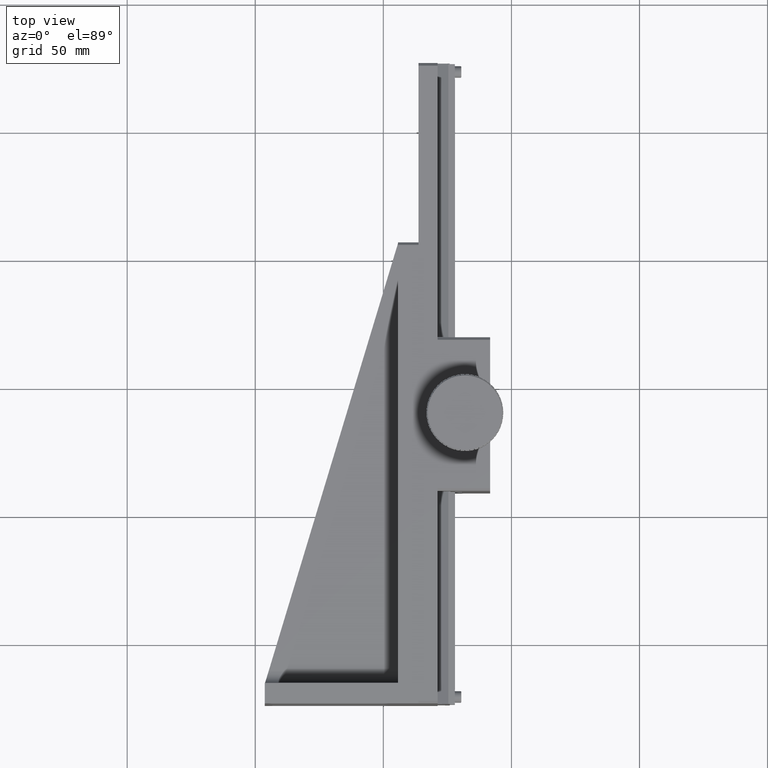
[diagram: clean part render]
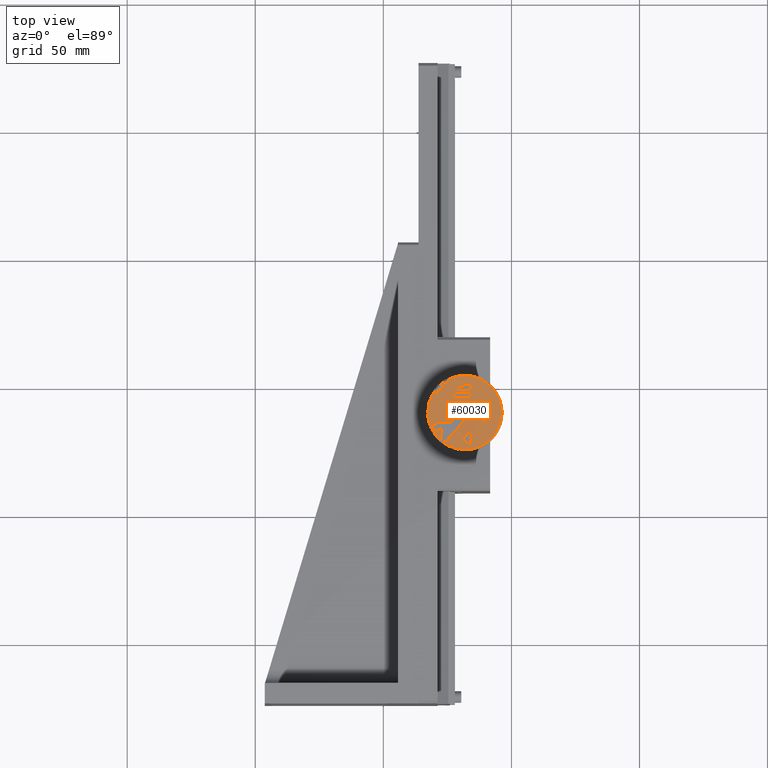
[diagram: same view with one face highlighted and labeled with its STEP entity id]
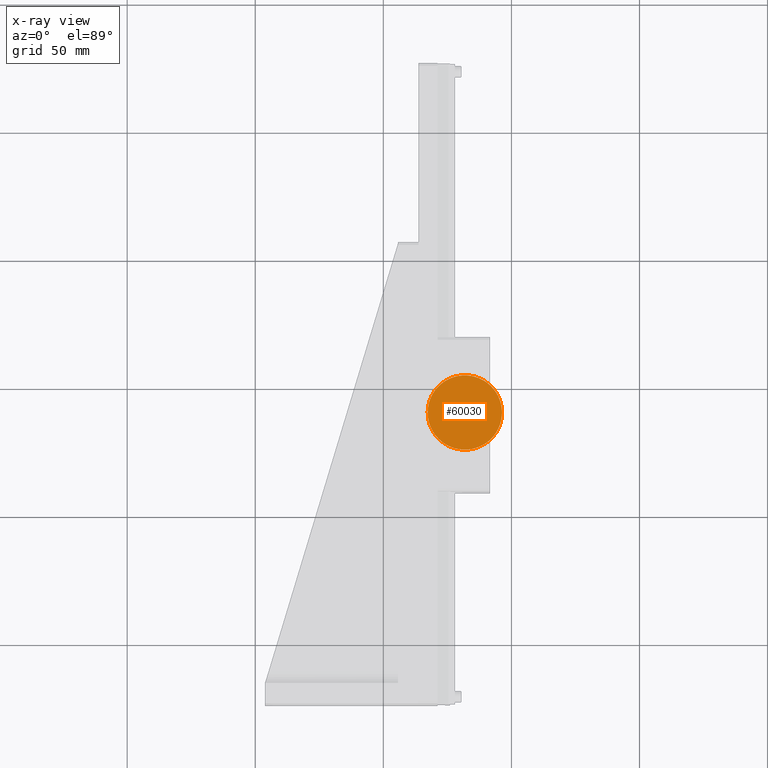
[diagram: x-ray of the same camera — body ghosted, the highlighted face saturated]
A machine part, top view. The second image highlights one B-rep face of the part: STEP entity #60030.
The next image is the same camera in x-ray: the body ghosted, the highlighted face saturated — about 0% of this face is hidden behind the body in this view.
In plain terms, the highlighted planar face has unit normal (0, 0, -1).
Its self-contained STEP definition (entity closure, byte-faithful):
#118 = AXIS2_PLACEMENT_3D ( 'NONE', #47805, #21446, #3504 ) ;
#191 = CARTESIAN_POINT ( 'NONE',  ( 90.33241959013697908, 250.8428864988914029, 183.1408711668379965 ) ) ;
#643 = CARTESIAN_POINT ( 'NONE',  ( 81.80953343189470672, 239.1121400804544805, 183.1408711668445903 ) ) ;
#1228 = CARTESIAN_POINT ( 'NONE',  ( 73.28664727365543285, 250.8428864988915166, 183.1408711668370017 ) ) ;
#1408 = CARTESIAN_POINT ( 'NONE',  ( 81.80953343189470672, 239.1121400804544805, 183.1408711668445903 ) ) ;
#1700 = VERTEX_POINT ( 'NONE', #37595 ) ;
#1824 = ORIENTED_EDGE ( 'NONE', *, *, #68487, .F. ) ;
#1853 = CIRCLE ( 'NONE', #50280, 14.49999999999999822 ) ;
#1936 = AXIS2_PLACEMENT_3D ( 'NONE', #3695, #90629, #22726 ) ;
#2035 = DIRECTION ( 'NONE',  ( 6.027908300939417609E-14, 2.620635585224594939E-15, -1.000000000000000000 ) ) ;
#2379 = DIRECTION ( 'NONE',  ( 6.027908300939417609E-14, 2.620635585224594939E-15, -1.000000000000000000 ) ) ;
#2598 = EDGE_CURVE ( 'NONE', #70882, #48266, #69944, .T. ) ;
#2668 = CARTESIAN_POINT ( 'NONE',  ( 81.80953343189470672, 239.1121400804544805, 183.1408711668445903 ) ) ;
#2868 = VERTEX_POINT ( 'NONE', #63141 ) ;
#3011 = AXIS2_PLACEMENT_3D ( 'NONE', #110458, #50499, #66810 ) ;
#3241 = VERTEX_POINT ( 'NONE', #90593 ) ;
#3242 = EDGE_CURVE ( 'NONE', #12390, #65627, #50249, .T. ) ;
#3339 = CIRCLE ( 'NONE', #66076, 14.49999999999999822 ) ;
#3504 = DIRECTION ( 'NONE',  ( -1.000000000000000000, 0.000000000000000000, -5.933950648858596521E-14 ) ) ;
#3694 = CIRCLE ( 'NONE', #91482, 14.49999999999999822 ) ;
#3695 = CARTESIAN_POINT ( 'NONE',  ( 81.80953343189470672, 239.1121400804544805, 183.1408711668445903 ) ) ;
#4094 = CIRCLE ( 'NONE', #61436, 14.49999999999999822 ) ;
#4166 = CIRCLE ( 'NONE', #75874, 14.49999999999999822 ) ;
#4594 = EDGE_CURVE ( 'NONE', #72552, #90925, #3694, .T. ) ;
#4930 = CIRCLE ( 'NONE', #81992, 14.49999999999999822 ) ;
#4963 = DIRECTION ( 'NONE',  ( -1.000000000000000000, 0.000000000000000000, -5.933950648858596521E-14 ) ) ;
#5435 = VERTEX_POINT ( 'NONE', #14615 ) ;
#5567 = DIRECTION ( 'NONE',  ( -1.000000000000000000, 0.000000000000000000, -5.933950648858596521E-14 ) ) ;
#5589 = DIRECTION ( 'NONE',  ( -1.000000000000000000, 0.000000000000000000, -5.933950648858596521E-14 ) ) ;
#6129 = DIRECTION ( 'NONE',  ( -1.000000000000000000, 0.000000000000000000, -5.933950648858596521E-14 ) ) ;
#6131 = EDGE_CURVE ( 'NONE', #72681, #43402, #86109, .T. ) ;
#6378 = CARTESIAN_POINT ( 'NONE',  ( 81.80953343189470672, 239.1121400804544805, 183.1408711668445903 ) ) ;
#6958 = CIRCLE ( 'NONE', #55325, 14.49999999999999822 ) ;
#7122 = EDGE_CURVE ( 'NONE', #96632, #58029, #93403, .T. ) ;
#7265 = CIRCLE ( 'NONE', #118, 14.49999999999999822 ) ;
#7390 = AXIS2_PLACEMENT_3D ( 'NONE', #107556, #25085, #43035 ) ;
#7595 = CARTESIAN_POINT ( 'NONE',  ( 81.80953343189470672, 239.1121400804544805, 183.1408711668445903 ) ) ;
#7844 = AXIS2_PLACEMENT_3D ( 'NONE', #30002, #98434, #21596 ) ;
#8001 = CARTESIAN_POINT ( 'NONE',  ( 67.56636829633016816, 241.8291691419478298, 183.1408711668366038 ) ) ;
#8318 = AXIS2_PLACEMENT_3D ( 'NONE', #59483, #74135, #48862 ) ;
#8345 = ORIENTED_EDGE ( 'NONE', *, *, #88787, .F. ) ;
#8413 = CARTESIAN_POINT ( 'NONE',  ( 81.80953343189470672, 239.1121400804544805, 183.1408711668445903 ) ) ;
#8487 = EDGE_CURVE ( 'NONE', #54500, #5435, #100577, .T. ) ;
#9237 = DIRECTION ( 'NONE',  ( -1.000000000000000000, 0.000000000000000000, -5.933950648858596521E-14 ) ) ;
#9461 = DIRECTION ( 'NONE',  ( 6.027908300939417609E-14, 2.620635585224594939E-15, -1.000000000000000000 ) ) ;
#9803 = DIRECTION ( 'NONE',  ( 6.027908300939417609E-14, 2.620635585224594939E-15, -1.000000000000000000 ) ) ;
#9913 = DIRECTION ( 'NONE',  ( -1.000000000000000000, 0.000000000000000000, -5.933950648858596521E-14 ) ) ;
#10169 = EDGE_CURVE ( 'NONE', #5435, #10825, #57678, .T. ) ;
#10622 = AXIS2_PLACEMENT_3D ( 'NONE', #93899, #25987, #68675 ) ;
#10825 = VERTEX_POINT ( 'NONE', #1228 ) ;
#11370 = DIRECTION ( 'NONE',  ( -1.000000000000000000, 0.000000000000000000, -5.933950648858596521E-14 ) ) ;
#12390 = VERTEX_POINT ( 'NONE', #98100 ) ;
#12608 = AXIS2_PLACEMENT_3D ( 'NONE', #68269, #53045, #35091 ) ;
#12634 = CARTESIAN_POINT ( 'NONE',  ( 91.73546646786209635, 249.6821851780650832, 183.1408711668381102 ) ) ;
#13113 = CARTESIAN_POINT ( 'NONE',  ( 79.99220154521357529, 224.7264769113947978, 183.1408711668372291 ) ) ;
#13736 = CARTESIAN_POINT ( 'NONE',  ( 81.80953343189470672, 239.1121400804544805, 183.1408711668445903 ) ) ;
#13883 = CARTESIAN_POINT ( 'NONE',  ( 85.41553679578652236, 253.1565959168197821, 183.1408711668377407 ) ) ;
#13892 = ORIENTED_EDGE ( 'NONE', *, *, #3242, .F. ) ;
#14515 = CARTESIAN_POINT ( 'NONE',  ( 73.28664727365516285, 227.3813936620180698, 183.1408711668368312 ) ) ;
#14615 = CARTESIAN_POINT ( 'NONE',  ( 71.88360039593025874, 249.6821851780652253, 183.1408711668369165 ) ) ;
#14683 = AXIS2_PLACEMENT_3D ( 'NONE', #33315, #24911, #25996 ) ;
#14799 = EDGE_CURVE ( 'NONE', #60957, #18606, #32515, .T. ) ;
#15278 = DIRECTION ( 'NONE',  ( -1.000000000000000000, 0.000000000000000000, -5.933950648858596521E-14 ) ) ;
#16298 = DIRECTION ( 'NONE',  ( -1.000000000000000000, 0.000000000000000000, -5.933950648858596521E-14 ) ) ;
#16498 = DIRECTION ( 'NONE',  ( -1.000000000000000000, 0.000000000000000000, -5.933950648858596521E-14 ) ) ;
#16609 = AXIS2_PLACEMENT_3D ( 'NONE', #30757, #38644, #4963 ) ;
#16783 = VERTEX_POINT ( 'NONE', #66238 ) ;
#17587 = DIRECTION ( 'NONE',  ( 6.027908300939417609E-14, 2.620635585224594939E-15, -1.000000000000000000 ) ) ;
#17908 = CIRCLE ( 'NONE', #28614, 14.49999999999999822 ) ;
#17980 = CARTESIAN_POINT ( 'NONE',  ( 81.80953343189470672, 239.1121400804544805, 183.1408711668445903 ) ) ;
#18581 = CIRCLE ( 'NONE', #7844, 14.49999999999999822 ) ;
#18606 = VERTEX_POINT ( 'NONE', #13113 ) ;
#19119 = ORIENTED_EDGE ( 'NONE', *, *, #23868, .F. ) ;
#19683 = ORIENTED_EDGE ( 'NONE', *, *, #2598, .F. ) ;
#19753 = CIRCLE ( 'NONE', #44894, 14.49999999999999822 ) ;
#19833 = AXIS2_PLACEMENT_3D ( 'NONE', #79266, #2379, #105015 ) ;
#20361 = CARTESIAN_POINT ( 'NONE',  ( 94.92952569265332841, 232.9383403527610596, 183.1408711668381670 ) ) ;
#20967 = AXIS2_PLACEMENT_3D ( 'NONE', #86104, #93427, #9237 ) ;
#21083 = AXIS2_PLACEMENT_3D ( 'NONE', #107219, #38819, #11370 ) ;
#21446 = DIRECTION ( 'NONE',  ( 6.027908300939417609E-14, 2.620635585224594939E-15, -1.000000000000000000 ) ) ;
#21596 = DIRECTION ( 'NONE',  ( -1.000000000000000000, 0.000000000000000000, -5.933950648858596521E-14 ) ) ;
#21632 = VERTEX_POINT ( 'NONE', #12634 ) ;
#22358 = EDGE_CURVE ( 'NONE', #58029, #63051, #4166, .T. ) ;
#22370 = VERTEX_POINT ( 'NONE', #61327 ) ;
#22412 = EDGE_CURVE ( 'NONE', #58201, #94864, #102631, .T. ) ;
#22726 = DIRECTION ( 'NONE',  ( -1.000000000000000000, 0.000000000000000000, -5.933950648858596521E-14 ) ) ;
#23059 = CARTESIAN_POINT ( 'NONE',  ( 81.80953343189470672, 239.1121400804544805, 183.1408711668445903 ) ) ;
#23546 = DIRECTION ( 'NONE',  ( 6.027908300939417609E-14, 2.620635585224594939E-15, -1.000000000000000000 ) ) ;
#23732 = ORIENTED_EDGE ( 'NONE', *, *, #7122, .F. ) ;
#23829 = VERTEX_POINT ( 'NONE', #105170 ) ;
#23831 = VERTEX_POINT ( 'NONE', #44646 ) ;
#23868 = EDGE_CURVE ( 'NONE', #69784, #40793, #18581, .T. ) ;
#24911 = DIRECTION ( 'NONE',  ( 5.936541774370981581E-14, 2.339045276627645738E-15, -1.000000000000000000 ) ) ;
#25085 = DIRECTION ( 'NONE',  ( 6.027908300939417609E-14, 2.620635585224594939E-15, -1.000000000000000000 ) ) ;
#25307 = DIRECTION ( 'NONE',  ( 6.027908300939417609E-14, 2.620635585224594939E-15, -1.000000000000000000 ) ) ;
#25445 = DIRECTION ( 'NONE',  ( 6.027908300939417609E-14, 2.620635585224594939E-15, -1.000000000000000000 ) ) ;
#25982 = CARTESIAN_POINT ( 'NONE',  ( 81.80953343189470672, 239.1121400804544805, 183.1408711668445903 ) ) ;
#25985 = DIRECTION ( 'NONE',  ( -1.000000000000000000, 0.000000000000000000, -5.933950648858596521E-14 ) ) ;
#25987 = DIRECTION ( 'NONE',  ( 6.027908300939417609E-14, 2.620635585224594939E-15, -1.000000000000000000 ) ) ;
#25996 = DIRECTION ( 'NONE',  ( -1.000000000000000000, 0.000000000000000000, -5.936541774370981581E-14 ) ) ;
#26050 = DIRECTION ( 'NONE',  ( 6.027908300939417609E-14, 2.620635585224594939E-15, -1.000000000000000000 ) ) ;
#26089 = AXIS2_PLACEMENT_3D ( 'NONE', #8413, #58926, #16298 ) ;
#26609 = DIRECTION ( 'NONE',  ( -1.000000000000000000, 0.000000000000000000, -5.933950648858596521E-14 ) ) ;
#27386 = CIRCLE ( 'NONE', #90123, 14.49999999999999822 ) ;
#27489 = VERTEX_POINT ( 'NONE', #47241 ) ;
#27528 = CIRCLE ( 'NONE', #86658, 14.49999999999999822 ) ;
#27707 = DIRECTION ( 'NONE',  ( 6.027908300939417609E-14, 2.620635585224594939E-15, -1.000000000000000000 ) ) ;
#27727 = CARTESIAN_POINT ( 'NONE',  ( 95.59985291817585562, 243.5928864988913745, 183.1408711668382807 ) ) ;
#27951 = AXIS2_PLACEMENT_3D ( 'NONE', #86330, #9461, #53199 ) ;
#28179 = CARTESIAN_POINT ( 'NONE',  ( 74.82410515742115820, 226.4056932198187724, 183.1408711668369165 ) ) ;
#28184 = ORIENTED_EDGE ( 'NONE', *, *, #22412, .F. ) ;
#28602 = CARTESIAN_POINT ( 'NONE',  ( 94.05228835167527279, 231.3426515532591452, 183.1408711668381102 ) ) ;
#28614 = AXIS2_PLACEMENT_3D ( 'NONE', #25982, #17587, #51809 ) ;
#29044 = CARTESIAN_POINT ( 'NONE',  ( 81.80953343189470672, 239.1121400804544805, 183.1408711668445903 ) ) ;
#29297 = CIRCLE ( 'NONE', #92041, 14.49999999999999822 ) ;
#29344 = CARTESIAN_POINT ( 'NONE',  ( 81.80953343189470672, 239.1121400804544805, 183.1408711668445903 ) ) ;
#29906 = ORIENTED_EDGE ( 'NONE', *, *, #30488, .F. ) ;
#29984 = AXIS2_PLACEMENT_3D ( 'NONE', #76403, #65768, #15278 ) ;
#30002 = CARTESIAN_POINT ( 'NONE',  ( 81.80953343189470672, 239.1121400804544805, 183.1408711668445903 ) ) ;
#30045 = DIRECTION ( 'NONE',  ( 6.027908300939417609E-14, 2.620635585224594939E-15, -1.000000000000000000 ) ) ;
#30393 = CARTESIAN_POINT ( 'NONE',  ( 81.80953343189470672, 239.1121400804544805, 183.1408711668445903 ) ) ;
#30488 = EDGE_CURVE ( 'NONE', #57175, #76399, #74620, .T. ) ;
#30545 = ORIENTED_EDGE ( 'NONE', *, *, #47894, .F. ) ;
#30736 = AXIS2_PLACEMENT_3D ( 'NONE', #106882, #30045, #81666 ) ;
#30757 = CARTESIAN_POINT ( 'NONE',  ( 81.80953343189470672, 239.1121400804544805, 183.1408711668445903 ) ) ;
#31090 = DIRECTION ( 'NONE',  ( 6.027908300939417609E-14, 2.620635585224594939E-15, -1.000000000000000000 ) ) ;
#31256 = VERTEX_POINT ( 'NONE', #13883 ) ;
#31336 = ORIENTED_EDGE ( 'NONE', *, *, #52647, .F. ) ;
#31363 = CARTESIAN_POINT ( 'NONE',  ( 81.80953343189470672, 239.1121400804544805, 183.1408711668445903 ) ) ;
#31443 = EDGE_CURVE ( 'NONE', #76399, #22370, #35246, .T. ) ;
#31516 = CARTESIAN_POINT ( 'NONE',  ( 96.05269856746207324, 241.8291691419476308, 183.1408711668383091 ) ) ;
#31651 = AXIS2_PLACEMENT_3D ( 'NONE', #29044, #63295, #97488 ) ;
#31922 = AXIS2_PLACEMENT_3D ( 'NONE', #82455, #23546, #5589 ) ;
#32088 = CARTESIAN_POINT ( 'NONE',  ( 83.62686531857850980, 253.4978032495145328, 183.1408711668375986 ) ) ;
#32515 = CIRCLE ( 'NONE', #64718, 14.49999999999999822 ) ;
#33315 = CARTESIAN_POINT ( 'NONE',  ( 81.80953343189472093, 239.1121400804544521, 183.1408711668445903 ) ) ;
#34119 = AXIS2_PLACEMENT_3D ( 'NONE', #50488, #76304, #85816 ) ;
#34577 = ORIENTED_EDGE ( 'NONE', *, *, #48267, .F. ) ;
#34890 = CIRCLE ( 'NONE', #68969, 14.49999999999999822 ) ;
#34946 = VERTEX_POINT ( 'NONE', #96344 ) ;
#35016 = CARTESIAN_POINT ( 'NONE',  ( 95.59985291817578457, 234.6313936620178424, 183.1408711668382239 ) ) ;
#35091 = DIRECTION ( 'NONE',  ( -1.000000000000000000, 0.000000000000000000, -5.933950648858596521E-14 ) ) ;
#35135 = ORIENTED_EDGE ( 'NONE', *, *, #59448, .F. ) ;
#35246 = CIRCLE ( 'NONE', #31651, 14.49999999999999822 ) ;
#35279 = CARTESIAN_POINT ( 'NONE',  ( 96.28092099410601179, 240.0226026136296582, 183.1408711668383091 ) ) ;
#36279 = CARTESIAN_POINT ( 'NONE',  ( 81.80953343189470672, 239.1121400804544805, 183.1408711668445903 ) ) ;
#36599 = DIRECTION ( 'NONE',  ( 6.027908300939417609E-14, 2.620635585224594939E-15, -1.000000000000000000 ) ) ;
#37595 = CARTESIAN_POINT ( 'NONE',  ( 68.68954117113878510, 232.9383403527612302, 183.1408711668366038 ) ) ;
#37793 = ORIENTED_EDGE ( 'NONE', *, *, #106171, .F. ) ;
#37997 = EDGE_CURVE ( 'NONE', #94920, #1700, #44230, .T. ) ;
#38286 = DIRECTION ( 'NONE',  ( 6.027908300939417609E-14, 2.620635585224594939E-15, -1.000000000000000000 ) ) ;
#38644 = DIRECTION ( 'NONE',  ( 6.027908300939417609E-14, 2.620635585224594939E-15, -1.000000000000000000 ) ) ;
#38819 = DIRECTION ( 'NONE',  ( 6.027908300939417609E-14, 2.620635585224594939E-15, -1.000000000000000000 ) ) ;
#38853 = ORIENTED_EDGE ( 'NONE', *, *, #82146, .F. ) ;
#39254 = ORIENTED_EDGE ( 'NONE', *, *, #68414, .F. ) ;
#39511 = ORIENTED_EDGE ( 'NONE', *, *, #73731, .F. ) ;
#39806 = ORIENTED_EDGE ( 'NONE', *, *, #108098, .F. ) ;
#39807 = DIRECTION ( 'NONE',  ( -1.000000000000000000, 0.000000000000000000, -5.933950648858596521E-14 ) ) ;
#40565 = ORIENTED_EDGE ( 'NONE', *, *, #41075, .F. ) ;
#40793 = VERTEX_POINT ( 'NONE', #98270 ) ;
#41075 = EDGE_CURVE ( 'NONE', #34946, #27489, #90919, .T. ) ;
#41832 = CARTESIAN_POINT ( 'NONE',  ( 92.98197545214503634, 248.3547879318106197, 183.1408711668381386 ) ) ;
#42155 = CARTESIAN_POINT ( 'NONE',  ( 81.80953343189470672, 239.1121400804544805, 183.1408711668445903 ) ) ;
#42840 = CARTESIAN_POINT ( 'NONE',  ( 81.80953343189470672, 239.1121400804544805, 183.1408711668445903 ) ) ;
#42908 = DIRECTION ( 'NONE',  ( -1.000000000000000000, 0.000000000000000000, -5.933950648858596521E-14 ) ) ;
#43035 = DIRECTION ( 'NONE',  ( -1.000000000000000000, 0.000000000000000000, -5.933950648858596521E-14 ) ) ;
#43386 = ORIENTED_EDGE ( 'NONE', *, *, #56097, .F. ) ;
#43402 = VERTEX_POINT ( 'NONE', #84200 ) ;
#43525 = DIRECTION ( 'NONE',  ( 6.027908300939417609E-14, 2.620635585224594939E-15, -1.000000000000000000 ) ) ;
#43810 = CIRCLE ( 'NONE', #58156, 14.49999999999999822 ) ;
#44002 = CARTESIAN_POINT ( 'NONE',  ( 81.80953343189470672, 239.1121400804544805, 183.1408711668445903 ) ) ;
#44230 = CIRCLE ( 'NONE', #63944, 14.49999999999999822 ) ;
#44492 = DIRECTION ( 'NONE',  ( 6.027908300939417609E-14, 2.620635585224594939E-15, -1.000000000000000000 ) ) ;
#44557 = DIRECTION ( 'NONE',  ( 6.027908300939417609E-14, 2.620635585224594939E-15, -1.000000000000000000 ) ) ;
#44646 = CARTESIAN_POINT ( 'NONE',  ( 68.68954117113895563, 245.2859398081483562, 183.1408711668366607 ) ) ;
#44894 = AXIS2_PLACEMENT_3D ( 'NONE', #2668, #90186, #96920 ) ;
#45277 = DIRECTION ( 'NONE',  ( 6.027908300939417609E-14, 2.620635585224594939E-15, -1.000000000000000000 ) ) ;
#45535 = ORIENTED_EDGE ( 'NONE', *, *, #72423, .F. ) ;
#45645 = DIRECTION ( 'NONE',  ( -1.000000000000000000, 0.000000000000000000, -5.933950648858596521E-14 ) ) ;
#45745 = CARTESIAN_POINT ( 'NONE',  ( 91.73546646786199688, 228.5420949828441337, 183.1408711668379397 ) ) ;
#46594 = CIRCLE ( 'NONE', #87831, 14.49999999999999822 ) ;
#46698 = VERTEX_POINT ( 'NONE', #28179 ) ;
#47108 = ORIENTED_EDGE ( 'NONE', *, *, #67190, .F. ) ;
#47135 = EDGE_CURVE ( 'NONE', #10825, #3241, #99971, .T. ) ;
#47241 = CARTESIAN_POINT ( 'NONE',  ( 67.33814586968625804, 240.0226026136298287, 183.1408711668365470 ) ) ;
#47401 = EDGE_CURVE ( 'NONE', #99399, #96650, #6958, .T. ) ;
#47638 = CIRCLE ( 'NONE', #110294, 14.49999999999999822 ) ;
#47805 = CARTESIAN_POINT ( 'NONE',  ( 81.80953343189470672, 239.1121400804544805, 183.1408711668445903 ) ) ;
#47894 = EDGE_CURVE ( 'NONE', #65340, #58201, #80386, .T. ) ;
#48111 = AXIS2_PLACEMENT_3D ( 'NONE', #30393, #38286, #48356 ) ;
#48227 = DIRECTION ( 'NONE',  ( 6.027908300939417609E-14, 2.620635585224594939E-15, -1.000000000000000000 ) ) ;
#48266 = VERTEX_POINT ( 'NONE', #108195 ) ;
#48267 = EDGE_CURVE ( 'NONE', #2868, #70882, #100134, .T. ) ;
#48356 = DIRECTION ( 'NONE',  ( -1.000000000000000000, 0.000000000000000000, -5.933950648858596521E-14 ) ) ;
#48862 = DIRECTION ( 'NONE',  ( -1.000000000000000000, 0.000000000000000000, -5.933950648858596521E-14 ) ) ;
#49998 = EDGE_CURVE ( 'NONE', #88072, #74484, #50054, .T. ) ;
#50054 = CIRCLE ( 'NONE', #10622, 14.49999999999999822 ) ;
#50151 = EDGE_CURVE ( 'NONE', #40793, #2868, #76949, .T. ) ;
#50249 = CIRCLE ( 'NONE', #64567, 14.49999999999999822 ) ;
#50280 = AXIS2_PLACEMENT_3D ( 'NONE', #86676, #9803, #53557 ) ;
#50488 = CARTESIAN_POINT ( 'NONE',  ( 81.80953343189470672, 239.1121400804544805, 183.1408711668445903 ) ) ;
#50499 = DIRECTION ( 'NONE',  ( 6.027908300939417609E-14, 2.620635585224594939E-15, -1.000000000000000000 ) ) ;
#50993 = VERTEX_POINT ( 'NONE', #65763 ) ;
#51014 = CIRCLE ( 'NONE', #65444, 14.49999999999999822 ) ;
#51096 = CIRCLE ( 'NONE', #26089, 14.49999999999999822 ) ;
#51122 = DIRECTION ( 'NONE',  ( -1.000000000000000000, 0.000000000000000000, -5.933950648858596521E-14 ) ) ;
#51142 = ORIENTED_EDGE ( 'NONE', *, *, #74636, .F. ) ;
#51261 = CARTESIAN_POINT ( 'NONE',  ( 81.80953343189470672, 239.1121400804544805, 183.1408711668445903 ) ) ;
#51714 = CIRCLE ( 'NONE', #76802, 14.49999999999999822 ) ;
#51797 = AXIS2_PLACEMENT_3D ( 'NONE', #51261, #25445, #94995 ) ;
#51809 = DIRECTION ( 'NONE',  ( -1.000000000000000000, 0.000000000000000000, -5.933950648858596521E-14 ) ) ;
#52126 = CARTESIAN_POINT ( 'NONE',  ( 96.05269856746204482, 236.3951110189616429, 183.1408711668382523 ) ) ;
#52533 = CIRCLE ( 'NONE', #90114, 14.49999999999999822 ) ;
#52647 = EDGE_CURVE ( 'NONE', #65627, #34946, #46594, .T. ) ;
#53045 = DIRECTION ( 'NONE',  ( 6.027908300939417609E-14, 2.620635585224594939E-15, -1.000000000000000000 ) ) ;
#53199 = DIRECTION ( 'NONE',  ( -1.000000000000000000, 0.000000000000000000, -5.933950648858596521E-14 ) ) ;
#53557 = DIRECTION ( 'NONE',  ( -1.000000000000000000, 0.000000000000000000, -5.933950648858596521E-14 ) ) ;
#54435 = DIRECTION ( 'NONE',  ( -1.000000000000000000, 0.000000000000000000, -5.933950648858596521E-14 ) ) ;
#54500 = VERTEX_POINT ( 'NONE', #58295 ) ;
#54739 = ORIENTED_EDGE ( 'NONE', *, *, #94306, .F. ) ;
#55325 = AXIS2_PLACEMENT_3D ( 'NONE', #84812, #25307, #67436 ) ;
#56053 = DIRECTION ( 'NONE',  ( -1.000000000000000000, 0.000000000000000000, -5.933950648858596521E-14 ) ) ;
#56097 = EDGE_CURVE ( 'NONE', #66040, #54500, #91528, .T. ) ;
#56199 = EDGE_CURVE ( 'NONE', #105310, #46698, #7265, .T. ) ;
#56628 = CARTESIAN_POINT ( 'NONE',  ( 81.80953343189470672, 239.1121400804544805, 183.1408711668445903 ) ) ;
#56718 = DIRECTION ( 'NONE',  ( 6.027908300939417609E-14, 2.620635585224594939E-15, -1.000000000000000000 ) ) ;
#57084 = ORIENTED_EDGE ( 'NONE', *, *, #66212, .F. ) ;
#57175 = VERTEX_POINT ( 'NONE', #14515 ) ;
#57567 = EDGE_CURVE ( 'NONE', #18606, #59819, #100748, .T. ) ;
#57678 = CIRCLE ( 'NONE', #91725, 14.49999999999999822 ) ;
#58029 = VERTEX_POINT ( 'NONE', #35279 ) ;
#58034 = DIRECTION ( 'NONE',  ( 6.027908300939417609E-14, 2.620635585224594939E-15, -1.000000000000000000 ) ) ;
#58156 = AXIS2_PLACEMENT_3D ( 'NONE', #23059, #56718, #82537 ) ;
#58201 = VERTEX_POINT ( 'NONE', #85266 ) ;
#58295 = CARTESIAN_POINT ( 'NONE',  ( 70.63709141164731875, 248.3547879318107903, 183.1408711668368312 ) ) ;
#58926 = DIRECTION ( 'NONE',  ( 6.027908300939417609E-14, 2.620635585224594939E-15, -1.000000000000000000 ) ) ;
#59012 = ORIENTED_EDGE ( 'NONE', *, *, #84971, .F. ) ;
#59448 = EDGE_CURVE ( 'NONE', #31256, #23829, #4094, .T. ) ;
#59483 = CARTESIAN_POINT ( 'NONE',  ( 81.80953343189470672, 239.1121400804544805, 183.1408711668445903 ) ) ;
#59612 = EDGE_CURVE ( 'NONE', #21632, #88072, #27386, .T. ) ;
#59819 = VERTEX_POINT ( 'NONE', #87895 ) ;
#59854 = ORIENTED_EDGE ( 'NONE', *, *, #98691, .F. ) ;
#60030 = ADVANCED_FACE ( 'NONE', ( #101735 ), #76542, .F. ) ;
#60083 = DIRECTION ( 'NONE',  ( -1.000000000000000000, 0.000000000000000000, -5.933950648858596521E-14 ) ) ;
#60288 = DIRECTION ( 'NONE',  ( -1.000000000000000000, 0.000000000000000000, -5.933950648858596521E-14 ) ) ;
#60644 = CARTESIAN_POINT ( 'NONE',  ( 81.80953343189470672, 239.1121400804544805, 183.1408711668445903 ) ) ;
#60926 = CARTESIAN_POINT ( 'NONE',  ( 69.56677851211684072, 231.3426515532594010, 183.1408711668366323 ) ) ;
#60957 = VERTEX_POINT ( 'NONE', #87396 ) ;
#61327 = CARTESIAN_POINT ( 'NONE',  ( 70.63709141164714822, 229.8694922290988245, 183.1408711668366891 ) ) ;
#61436 = AXIS2_PLACEMENT_3D ( 'NONE', #75643, #93548, #76735 ) ;
#61935 = DIRECTION ( 'NONE',  ( -1.000000000000000000, 0.000000000000000000, -5.933950648858596521E-14 ) ) ;
#62093 = DIRECTION ( 'NONE',  ( -1.000000000000000000, 0.000000000000000000, -5.933950648858596521E-14 ) ) ;
#62301 = EDGE_LOOP ( 'NONE', ( #81084, #57084, #77872, #47108, #39511, #95143, #68271, #97443, #43386, #37793, #91281, #38853, #69210, #40565, #31336, #13892, #39806, #76845, #1824, #72841, #29906, #90718, #109348, #66174, #97244, #63566, #59012, #19683, #34577, #107290, #19119, #59854, #28184, #30545, #39254, #82427, #51142, #78857, #91626, #23732, #54739, #105461, #45535, #95029, #85641, #98964, #100932, #63266, #35135, #8345 ) ) ;
#62574 = DIRECTION ( 'NONE',  ( 6.027908300939417609E-14, 2.620635585224594939E-15, -1.000000000000000000 ) ) ;
#63051 = VERTEX_POINT ( 'NONE', #82710 ) ;
#63141 = CARTESIAN_POINT ( 'NONE',  ( 87.14733944582384595, 225.6303810350749757, 183.1408711668376270 ) ) ;
#63266 = ORIENTED_EDGE ( 'NONE', *, *, #102746, .F. ) ;
#63295 = DIRECTION ( 'NONE',  ( 6.027908300939417609E-14, 2.620635585224594939E-15, -1.000000000000000000 ) ) ;
#63566 = ORIENTED_EDGE ( 'NONE', *, *, #14799, .F. ) ;
#63944 = AXIS2_PLACEMENT_3D ( 'NONE', #17980, #78002, #68507 ) ;
#64438 = CIRCLE ( 'NONE', #110913, 14.49999999999999822 ) ;
#64567 = AXIS2_PLACEMENT_3D ( 'NONE', #13736, #62574, #88395 ) ;
#64718 = AXIS2_PLACEMENT_3D ( 'NONE', #29344, #70903, #45645 ) ;
#64806 = EDGE_CURVE ( 'NONE', #46698, #57175, #68591, .T. ) ;
#65066 = CARTESIAN_POINT ( 'NONE',  ( 69.56677851211706809, 246.8816286076502422, 183.1408711668367459 ) ) ;
#65219 = CARTESIAN_POINT ( 'NONE',  ( 85.41553679578639446, 225.0676842440895200, 183.1408711668375133 ) ) ;
#65340 = VERTEX_POINT ( 'NONE', #28602 ) ;
#65444 = AXIS2_PLACEMENT_3D ( 'NONE', #81853, #89737, #56053 ) ;
#65627 = VERTEX_POINT ( 'NONE', #72935 ) ;
#65763 = CARTESIAN_POINT ( 'NONE',  ( 68.01921394561647105, 243.5928864988915450, 183.1408711668366323 ) ) ;
#65768 = DIRECTION ( 'NONE',  ( 6.027908300939417609E-14, 2.620635585224594939E-15, -1.000000000000000000 ) ) ;
#66040 = VERTEX_POINT ( 'NONE', #65066 ) ;
#66076 = AXIS2_PLACEMENT_3D ( 'NONE', #87679, #36599, #5567 ) ;
#66174 = ORIENTED_EDGE ( 'NONE', *, *, #95403, .F. ) ;
#66212 = EDGE_CURVE ( 'NONE', #43402, #99399, #52533, .T. ) ;
#66238 = CARTESIAN_POINT ( 'NONE',  ( 88.79496170637095531, 251.8185869410906150, 183.1408711668379112 ) ) ;
#66436 = DIRECTION ( 'NONE',  ( -1.000000000000000000, 0.000000000000000000, -5.933950648858596521E-14 ) ) ;
#66810 = DIRECTION ( 'NONE',  ( -1.000000000000000000, 0.000000000000000000, -5.933950648858596521E-14 ) ) ;
#66997 = AXIS2_PLACEMENT_3D ( 'NONE', #88940, #31090, #107370 ) ;
#67190 = EDGE_CURVE ( 'NONE', #77657, #72681, #106319, .T. ) ;
#67436 = DIRECTION ( 'NONE',  ( -1.000000000000000000, 0.000000000000000000, -5.933950648858596521E-14 ) ) ;
#68045 = VERTEX_POINT ( 'NONE', #191 ) ;
#68269 = CARTESIAN_POINT ( 'NONE',  ( 81.80953343189470672, 239.1121400804544805, 183.1408711668445903 ) ) ;
#68271 = ORIENTED_EDGE ( 'NONE', *, *, #10169, .F. ) ;
#68414 = EDGE_CURVE ( 'NONE', #96124, #65340, #29297, .T. ) ;
#68487 = EDGE_CURVE ( 'NONE', #22370, #94920, #27528, .T. ) ;
#68507 = DIRECTION ( 'NONE',  ( -1.000000000000000000, 0.000000000000000000, -5.933950648858596521E-14 ) ) ;
#68591 = CIRCLE ( 'NONE', #93630, 14.49999999999999822 ) ;
#68675 = DIRECTION ( 'NONE',  ( -1.000000000000000000, 0.000000000000000000, -5.933950648858596521E-14 ) ) ;
#68969 = AXIS2_PLACEMENT_3D ( 'NONE', #6378, #102249, #66436 ) ;
#69118 = DIRECTION ( 'NONE',  ( 6.027908300939417609E-14, 2.620635585224594939E-15, -1.000000000000000000 ) ) ;
#69210 = ORIENTED_EDGE ( 'NONE', *, *, #81495, .F. ) ;
#69346 = VERTEX_POINT ( 'NONE', #8001 ) ;
#69784 = VERTEX_POINT ( 'NONE', #106418 ) ;
#69944 = CIRCLE ( 'NONE', #12608, 14.49999999999999822 ) ;
#70882 = VERTEX_POINT ( 'NONE', #65219 ) ;
#70903 = DIRECTION ( 'NONE',  ( 6.027908300939417609E-14, 2.620635585224594939E-15, -1.000000000000000000 ) ) ;
#70927 = CARTESIAN_POINT ( 'NONE',  ( 81.80953343189470672, 239.1121400804544805, 183.1408711668445903 ) ) ;
#72423 = EDGE_CURVE ( 'NONE', #74484, #72552, #43810, .T. ) ;
#72552 = VERTEX_POINT ( 'NONE', #75816 ) ;
#72681 = VERTEX_POINT ( 'NONE', #100448 ) ;
#72841 = ORIENTED_EDGE ( 'NONE', *, *, #31443, .F. ) ;
#72935 = CARTESIAN_POINT ( 'NONE',  ( 67.56636829633011132, 236.3951110189618134, 183.1408711668365754 ) ) ;
#72954 = CIRCLE ( 'NONE', #20967, 14.49999999999999822 ) ;
#73731 = EDGE_CURVE ( 'NONE', #3241, #77657, #34890, .T. ) ;
#74135 = DIRECTION ( 'NONE',  ( 6.027908300939417609E-14, 2.620635585224594939E-15, -1.000000000000000000 ) ) ;
#74484 = VERTEX_POINT ( 'NONE', #80766 ) ;
#74620 = CIRCLE ( 'NONE', #27951, 14.49999999999999822 ) ;
#74636 = EDGE_CURVE ( 'NONE', #93354, #88572, #51014, .T. ) ;
#74888 = CIRCLE ( 'NONE', #29984, 14.49999999999999822 ) ;
#75643 = CARTESIAN_POINT ( 'NONE',  ( 81.80953343189470672, 239.1121400804544805, 183.1408711668445903 ) ) ;
#75816 = CARTESIAN_POINT ( 'NONE',  ( 94.92952569265339946, 245.2859398081481572, 183.1408711668382523 ) ) ;
#75874 = AXIS2_PLACEMENT_3D ( 'NONE', #95544, #77620, #25985 ) ;
#75989 = CARTESIAN_POINT ( 'NONE',  ( 76.47172741796846651, 252.5938991258343549, 183.1408711668372007 ) ) ;
#76304 = DIRECTION ( 'NONE',  ( 6.027908300939417609E-14, 2.620635585224594939E-15, -1.000000000000000000 ) ) ;
#76393 = DIRECTION ( 'NONE',  ( 6.027908300939417609E-14, 2.620635585224594939E-15, -1.000000000000000000 ) ) ;
#76399 = VERTEX_POINT ( 'NONE', #91262 ) ;
#76403 = CARTESIAN_POINT ( 'NONE',  ( 81.80953343189470672, 239.1121400804544805, 183.1408711668445903 ) ) ;
#76542 = PLANE ( 'NONE',  #14683 ) ;
#76640 = EDGE_CURVE ( 'NONE', #50993, #23831, #51096, .T. ) ;
#76735 = DIRECTION ( 'NONE',  ( -1.000000000000000000, 0.000000000000000000, -5.933950648858596521E-14 ) ) ;
#76802 = AXIS2_PLACEMENT_3D ( 'NONE', #100638, #58034, #85496 ) ;
#76845 = ORIENTED_EDGE ( 'NONE', *, *, #37997, .F. ) ;
#76949 = CIRCLE ( 'NONE', #51797, 14.49999999999999822 ) ;
#77620 = DIRECTION ( 'NONE',  ( 6.027908300939417609E-14, 2.620635585224594939E-15, -1.000000000000000000 ) ) ;
#77657 = VERTEX_POINT ( 'NONE', #75989 ) ;
#77872 = ORIENTED_EDGE ( 'NONE', *, *, #6131, .F. ) ;
#78002 = DIRECTION ( 'NONE',  ( 6.027908300939417609E-14, 2.620635585224594939E-15, -1.000000000000000000 ) ) ;
#78624 = DIRECTION ( 'NONE',  ( -1.000000000000000000, 0.000000000000000000, -5.933950648858596521E-14 ) ) ;
#78857 = ORIENTED_EDGE ( 'NONE', *, *, #104610, .F. ) ;
#79266 = CARTESIAN_POINT ( 'NONE',  ( 81.80953343189470672, 239.1121400804544805, 183.1408711668445903 ) ) ;
#79442 = AXIS2_PLACEMENT_3D ( 'NONE', #42840, #44492, #16498 ) ;
#80303 = CIRCLE ( 'NONE', #31922, 14.49999999999999822 ) ;
#80386 = CIRCLE ( 'NONE', #94714, 14.49999999999999822 ) ;
#80766 = CARTESIAN_POINT ( 'NONE',  ( 94.05228835167528700, 246.8816286076500717, 183.1408711668382239 ) ) ;
#81084 = ORIENTED_EDGE ( 'NONE', *, *, #47401, .F. ) ;
#81495 = EDGE_CURVE ( 'NONE', #27489, #69346, #97907, .T. ) ;
#81666 = DIRECTION ( 'NONE',  ( -1.000000000000000000, 0.000000000000000000, -5.933950648858596521E-14 ) ) ;
#81853 = CARTESIAN_POINT ( 'NONE',  ( 81.80953343189470672, 239.1121400804544805, 183.1408711668445903 ) ) ;
#81992 = AXIS2_PLACEMENT_3D ( 'NONE', #105090, #27707, #26609 ) ;
#82146 = EDGE_CURVE ( 'NONE', #69346, #50993, #47638, .T. ) ;
#82427 = ORIENTED_EDGE ( 'NONE', *, *, #96455, .F. ) ;
#82455 = CARTESIAN_POINT ( 'NONE',  ( 81.80953343189470672, 239.1121400804544805, 183.1408711668445903 ) ) ;
#82537 = DIRECTION ( 'NONE',  ( -1.000000000000000000, 0.000000000000000000, -5.933950648858596521E-14 ) ) ;
#82538 = CIRCLE ( 'NONE', #1936, 14.49999999999999822 ) ;
#82710 = CARTESIAN_POINT ( 'NONE',  ( 96.28092099410595495, 238.2016775472795587, 183.1408711668382807 ) ) ;
#83007 = DIRECTION ( 'NONE',  ( 6.027908300939417609E-14, 2.620635585224594939E-15, -1.000000000000000000 ) ) ;
#84200 = CARTESIAN_POINT ( 'NONE',  ( 79.99220154521388793, 253.4978032495145328, 183.1408711668374281 ) ) ;
#84473 = DIRECTION ( 'NONE',  ( 6.027908300939417609E-14, 2.620635585224594939E-15, -1.000000000000000000 ) ) ;
#84812 = CARTESIAN_POINT ( 'NONE',  ( 81.80953343189470672, 239.1121400804544805, 183.1408711668445903 ) ) ;
#84971 = EDGE_CURVE ( 'NONE', #48266, #60957, #90725, .T. ) ;
#85266 = CARTESIAN_POINT ( 'NONE',  ( 92.98197545214496529, 229.8694922290985971, 183.1408711668380249 ) ) ;
#85496 = DIRECTION ( 'NONE',  ( -1.000000000000000000, 0.000000000000000000, -5.933950648858596521E-14 ) ) ;
#85641 = ORIENTED_EDGE ( 'NONE', *, *, #59612, .F. ) ;
#85816 = DIRECTION ( 'NONE',  ( -1.000000000000000000, 0.000000000000000000, -5.933950648858596521E-14 ) ) ;
#86104 = CARTESIAN_POINT ( 'NONE',  ( 81.80953343189470672, 239.1121400804544805, 183.1408711668445903 ) ) ;
#86109 = CIRCLE ( 'NONE', #34119, 14.49999999999999822 ) ;
#86330 = CARTESIAN_POINT ( 'NONE',  ( 81.80953343189470672, 239.1121400804544805, 183.1408711668445903 ) ) ;
#86658 = AXIS2_PLACEMENT_3D ( 'NONE', #70927, #26050, #60288 ) ;
#86676 = CARTESIAN_POINT ( 'NONE',  ( 81.80953343189470672, 239.1121400804544805, 183.1408711668445903 ) ) ;
#87396 = CARTESIAN_POINT ( 'NONE',  ( 81.80953343189608518, 224.6121400804547648, 183.1408711668373144 ) ) ;
#87679 = CARTESIAN_POINT ( 'NONE',  ( 81.80953343189470672, 239.1121400804544805, 183.1408711668445903 ) ) ;
#87738 = EDGE_CURVE ( 'NONE', #68045, #21632, #72954, .T. ) ;
#87831 = AXIS2_PLACEMENT_3D ( 'NONE', #99248, #99794, #39807 ) ;
#87895 = CARTESIAN_POINT ( 'NONE',  ( 78.20353006800559115, 225.0676842440896337, 183.1408711668371154 ) ) ;
#88072 = VERTEX_POINT ( 'NONE', #41832 ) ;
#88395 = DIRECTION ( 'NONE',  ( -1.000000000000000000, 0.000000000000000000, -5.933950648858596521E-14 ) ) ;
#88572 = VERTEX_POINT ( 'NONE', #35016 ) ;
#88787 = EDGE_CURVE ( 'NONE', #96650, #31256, #4930, .T. ) ;
#88940 = CARTESIAN_POINT ( 'NONE',  ( 81.80953343189470672, 239.1121400804544805, 183.1408711668445903 ) ) ;
#89737 = DIRECTION ( 'NONE',  ( 6.027908300939417609E-14, 2.620635585224594939E-15, -1.000000000000000000 ) ) ;
#90114 = AXIS2_PLACEMENT_3D ( 'NONE', #31363, #83007, #6129 ) ;
#90123 = AXIS2_PLACEMENT_3D ( 'NONE', #103570, #2035, #9913 ) ;
#90186 = DIRECTION ( 'NONE',  ( 6.027908300939417609E-14, 2.620635585224594939E-15, -1.000000000000000000 ) ) ;
#90593 = CARTESIAN_POINT ( 'NONE',  ( 74.82410515742141399, 251.8185869410907287, 183.1408711668370870 ) ) ;
#90629 = DIRECTION ( 'NONE',  ( 6.027908300939417609E-14, 2.620635585224594939E-15, -1.000000000000000000 ) ) ;
#90718 = ORIENTED_EDGE ( 'NONE', *, *, #64806, .F. ) ;
#90725 = CIRCLE ( 'NONE', #8318, 14.49999999999999822 ) ;
#90919 = CIRCLE ( 'NONE', #21083, 14.49999999999999822 ) ;
#90925 = VERTEX_POINT ( 'NONE', #27727 ) ;
#91262 = CARTESIAN_POINT ( 'NONE',  ( 71.88360039593003137, 228.5420949828443042, 183.1408711668367744 ) ) ;
#91281 = ORIENTED_EDGE ( 'NONE', *, *, #76640, .F. ) ;
#91482 = AXIS2_PLACEMENT_3D ( 'NONE', #643, #69118, #78624 ) ;
#91528 = CIRCLE ( 'NONE', #19833, 14.49999999999999822 ) ;
#91626 = ORIENTED_EDGE ( 'NONE', *, *, #22358, .F. ) ;
#91725 = AXIS2_PLACEMENT_3D ( 'NONE', #36279, #45277, #62093 ) ;
#92041 = AXIS2_PLACEMENT_3D ( 'NONE', #44002, #44557, #61935 ) ;
#93354 = VERTEX_POINT ( 'NONE', #52126 ) ;
#93403 = CIRCLE ( 'NONE', #7390, 14.49999999999999822 ) ;
#93427 = DIRECTION ( 'NONE',  ( 6.027908300939417609E-14, 2.620635585224594939E-15, -1.000000000000000000 ) ) ;
#93548 = DIRECTION ( 'NONE',  ( 6.027908300939417609E-14, 2.620635585224594939E-15, -1.000000000000000000 ) ) ;
#93630 = AXIS2_PLACEMENT_3D ( 'NONE', #60644, #94296, #60083 ) ;
#93899 = CARTESIAN_POINT ( 'NONE',  ( 81.80953343189470672, 239.1121400804544805, 183.1408711668445903 ) ) ;
#94296 = DIRECTION ( 'NONE',  ( 6.027908300939417609E-14, 2.620635585224594939E-15, -1.000000000000000000 ) ) ;
#94306 = EDGE_CURVE ( 'NONE', #90925, #96632, #3339, .T. ) ;
#94714 = AXIS2_PLACEMENT_3D ( 'NONE', #42155, #76393, #51122 ) ;
#94864 = VERTEX_POINT ( 'NONE', #45745 ) ;
#94920 = VERTEX_POINT ( 'NONE', #60926 ) ;
#94995 = DIRECTION ( 'NONE',  ( -1.000000000000000000, 0.000000000000000000, -5.933950648858596521E-14 ) ) ;
#95029 = ORIENTED_EDGE ( 'NONE', *, *, #49998, .F. ) ;
#95143 = ORIENTED_EDGE ( 'NONE', *, *, #47135, .F. ) ;
#95403 = EDGE_CURVE ( 'NONE', #59819, #105310, #51714, .T. ) ;
#95544 = CARTESIAN_POINT ( 'NONE',  ( 81.80953343189470672, 239.1121400804544805, 183.1408711668445903 ) ) ;
#96124 = VERTEX_POINT ( 'NONE', #20361 ) ;
#96344 = CARTESIAN_POINT ( 'NONE',  ( 67.33814586968617277, 238.2016775472797860, 183.1408711668365470 ) ) ;
#96455 = EDGE_CURVE ( 'NONE', #88572, #96124, #74888, .T. ) ;
#96632 = VERTEX_POINT ( 'NONE', #31516 ) ;
#96650 = VERTEX_POINT ( 'NONE', #32088 ) ;
#96920 = DIRECTION ( 'NONE',  ( -1.000000000000000000, 0.000000000000000000, -5.933950648858596521E-14 ) ) ;
#97244 = ORIENTED_EDGE ( 'NONE', *, *, #57567, .F. ) ;
#97443 = ORIENTED_EDGE ( 'NONE', *, *, #8487, .F. ) ;
#97488 = DIRECTION ( 'NONE',  ( -1.000000000000000000, 0.000000000000000000, -5.933950648858596521E-14 ) ) ;
#97907 = CIRCLE ( 'NONE', #3011, 14.49999999999999822 ) ;
#98100 = CARTESIAN_POINT ( 'NONE',  ( 68.01921394561638579, 234.6313936620180982, 183.1408711668365754 ) ) ;
#98270 = CARTESIAN_POINT ( 'NONE',  ( 88.79496170637088426, 226.4056932198186303, 183.1408711668377407 ) ) ;
#98434 = DIRECTION ( 'NONE',  ( 6.027908300939417609E-14, 2.620635585224594939E-15, -1.000000000000000000 ) ) ;
#98691 = EDGE_CURVE ( 'NONE', #94864, #69784, #80303, .T. ) ;
#98828 = CARTESIAN_POINT ( 'NONE',  ( 76.47172741796821072, 225.6303810350751178, 183.1408711668370017 ) ) ;
#98964 = ORIENTED_EDGE ( 'NONE', *, *, #87738, .F. ) ;
#99248 = CARTESIAN_POINT ( 'NONE',  ( 81.80953343189470672, 239.1121400804544805, 183.1408711668445903 ) ) ;
#99399 = VERTEX_POINT ( 'NONE', #110333 ) ;
#99794 = DIRECTION ( 'NONE',  ( 6.027908300939417609E-14, 2.620635585224594939E-15, -1.000000000000000000 ) ) ;
#99971 = CIRCLE ( 'NONE', #48111, 14.49999999999999822 ) ;
#100134 = CIRCLE ( 'NONE', #110841, 14.49999999999999822 ) ;
#100448 = CARTESIAN_POINT ( 'NONE',  ( 78.20353006800591800, 253.1565959168198390, 183.1408711668373144 ) ) ;
#100577 = CIRCLE ( 'NONE', #30736, 14.49999999999999822 ) ;
#100638 = CARTESIAN_POINT ( 'NONE',  ( 81.80953343189470672, 239.1121400804544805, 183.1408711668445903 ) ) ;
#100748 = CIRCLE ( 'NONE', #16609, 14.49999999999999822 ) ;
#100932 = ORIENTED_EDGE ( 'NONE', *, *, #106911, .F. ) ;
#101735 = FACE_OUTER_BOUND ( 'NONE', #62301, .T. ) ;
#102249 = DIRECTION ( 'NONE',  ( 6.027908300939417609E-14, 2.620635585224594939E-15, -1.000000000000000000 ) ) ;
#102631 = CIRCLE ( 'NONE', #79442, 14.49999999999999822 ) ;
#102746 = EDGE_CURVE ( 'NONE', #23829, #16783, #64438, .T. ) ;
#103500 = DIRECTION ( 'NONE',  ( -1.000000000000000000, 0.000000000000000000, -5.933950648858596521E-14 ) ) ;
#103570 = CARTESIAN_POINT ( 'NONE',  ( 81.80953343189470672, 239.1121400804544805, 183.1408711668445903 ) ) ;
#104610 = EDGE_CURVE ( 'NONE', #63051, #93354, #17908, .T. ) ;
#105015 = DIRECTION ( 'NONE',  ( -1.000000000000000000, 0.000000000000000000, -5.933950648858596521E-14 ) ) ;
#105090 = CARTESIAN_POINT ( 'NONE',  ( 81.80953343189470672, 239.1121400804544805, 183.1408711668445903 ) ) ;
#105170 = CARTESIAN_POINT ( 'NONE',  ( 87.14733944582390279, 252.5938991258342980, 183.1408711668378260 ) ) ;
#105310 = VERTEX_POINT ( 'NONE', #98828 ) ;
#105461 = ORIENTED_EDGE ( 'NONE', *, *, #4594, .F. ) ;
#106171 = EDGE_CURVE ( 'NONE', #23831, #66040, #19753, .T. ) ;
#106319 = CIRCLE ( 'NONE', #66997, 14.49999999999999822 ) ;
#106418 = CARTESIAN_POINT ( 'NONE',  ( 90.33241959013686539, 227.3813936620179277, 183.1408711668378544 ) ) ;
#106882 = CARTESIAN_POINT ( 'NONE',  ( 81.80953343189470672, 239.1121400804544805, 183.1408711668445903 ) ) ;
#106911 = EDGE_CURVE ( 'NONE', #16783, #68045, #1853, .T. ) ;
#107219 = CARTESIAN_POINT ( 'NONE',  ( 81.80953343189470672, 239.1121400804544805, 183.1408711668445903 ) ) ;
#107290 = ORIENTED_EDGE ( 'NONE', *, *, #50151, .F. ) ;
#107370 = DIRECTION ( 'NONE',  ( -1.000000000000000000, 0.000000000000000000, -5.933950648858596521E-14 ) ) ;
#107556 = CARTESIAN_POINT ( 'NONE',  ( 81.80953343189470672, 239.1121400804544805, 183.1408711668445903 ) ) ;
#108098 = EDGE_CURVE ( 'NONE', #1700, #12390, #82538, .T. ) ;
#108195 = CARTESIAN_POINT ( 'NONE',  ( 83.62686531857842454, 224.7264769113947409, 183.1408711668374281 ) ) ;
#109348 = ORIENTED_EDGE ( 'NONE', *, *, #56199, .F. ) ;
#110294 = AXIS2_PLACEMENT_3D ( 'NONE', #7595, #84473, #42908 ) ;
#110333 = CARTESIAN_POINT ( 'NONE',  ( 81.80953343189609939, 253.6121400804546226, 183.1408711668375133 ) ) ;
#110458 = CARTESIAN_POINT ( 'NONE',  ( 81.80953343189470672, 239.1121400804544805, 183.1408711668445903 ) ) ;
#110841 = AXIS2_PLACEMENT_3D ( 'NONE', #56628, #48227, #54435 ) ;
#110913 = AXIS2_PLACEMENT_3D ( 'NONE', #1408, #43525, #103500 ) ;